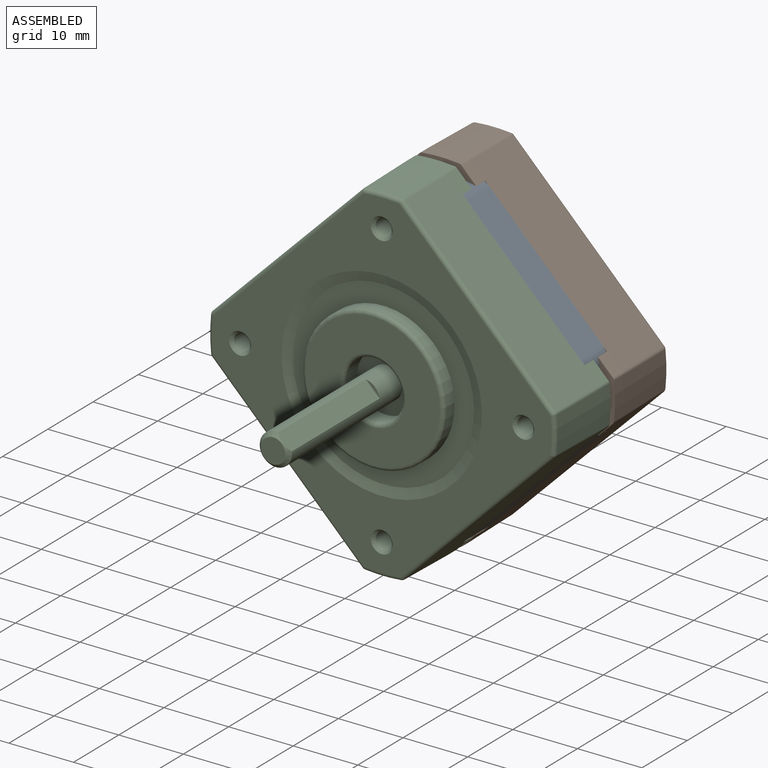
[diagram: assembled view]
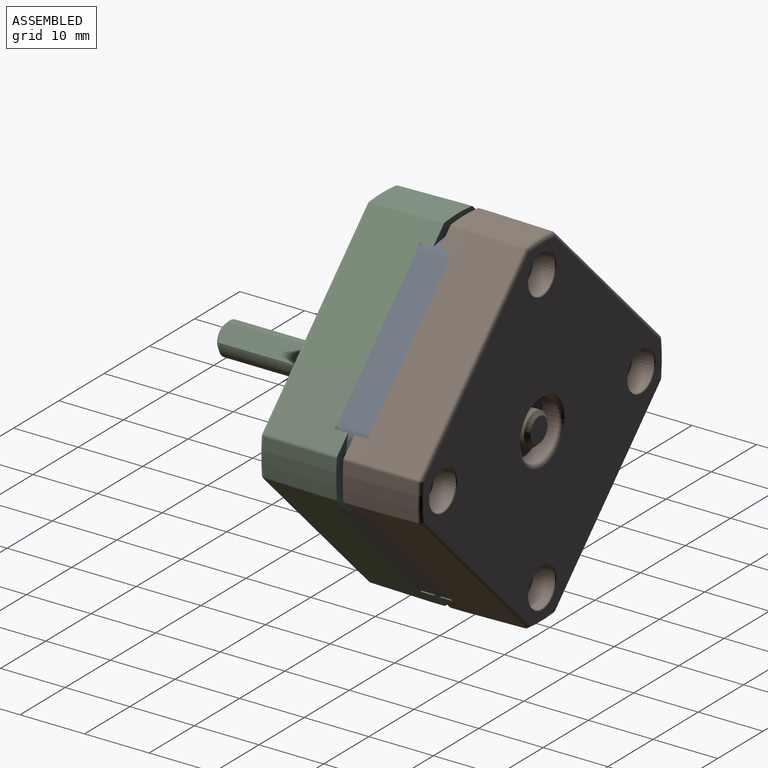
[diagram: assembled view, second angle]
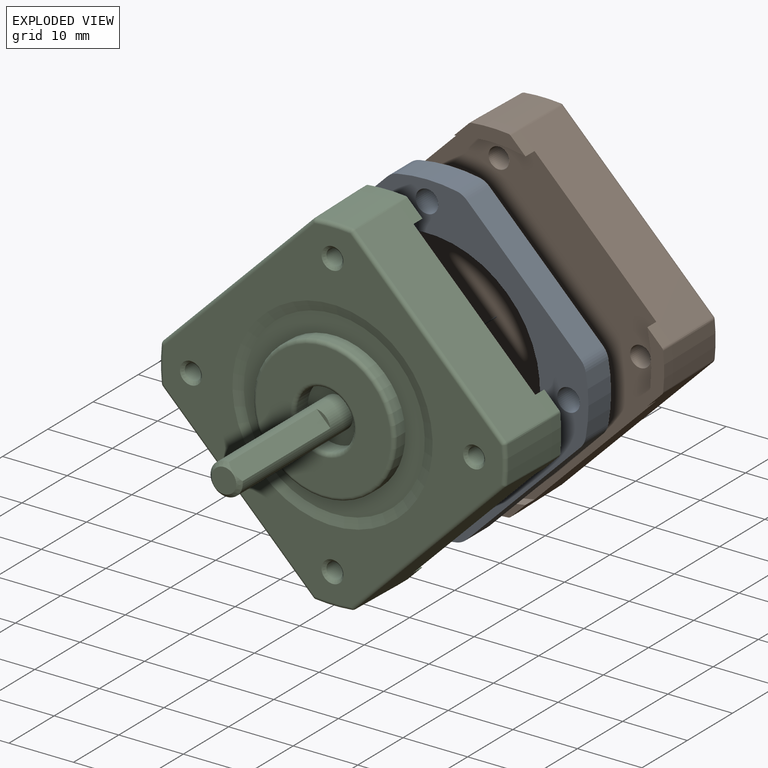
[diagram: exploded view]
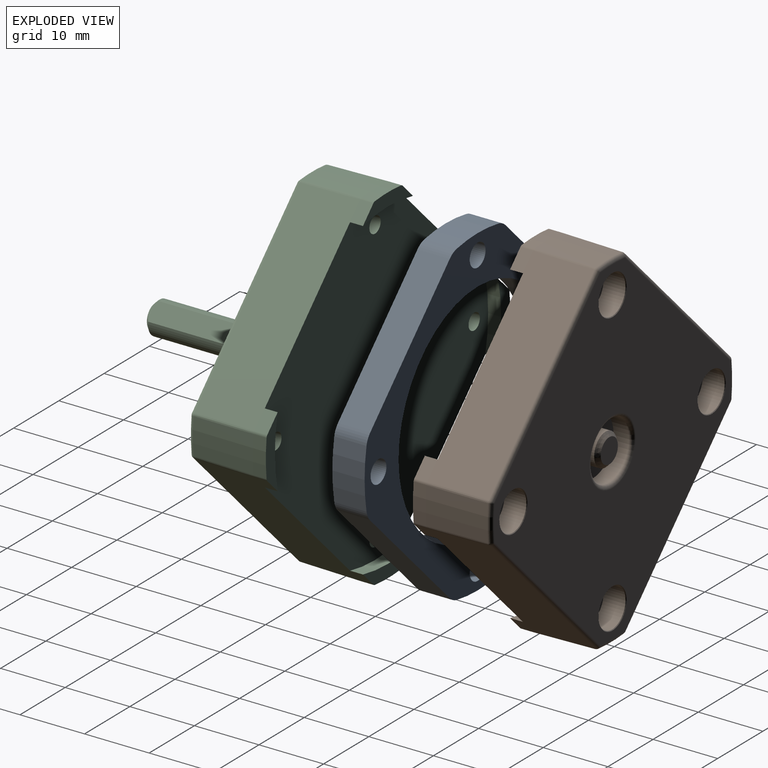
[diagram: exploded view, second angle]
ASSEMBLY  parts=3 mates=2
PART A: 28 faces, bbox 42.3x5x42.3 mm
  f0: cylinder r=17.5mm len=35mm, axis (0,-1,0), area 549.3mm2, adj f1,f2,f23,f25,f27
  f1: plane 42.3x42.3mm, normal (0,1,0), area 653.7mm2, adj f0,f3,f4,f5,f6,f7,f8,f9
  f2: plane 42.3x42.3mm, normal (0,-1,0), area 684.1mm2, adj f0,f3,f4,f5,f6,f7,f8,f9
  f3: cylinder r=25mm len=6.5mm, axis (0,-1,0), area 46.2mm2, adj f1,f2,f17,f18
  f4: plane 24.87x5mm, normal (0,0,-1), area 124.3mm2, adj f1,f2,f18,f19,f25
  f5: cylinder r=25mm len=6.5mm, axis (0,-1,0), area 46.2mm2, adj f1,f2,f19,f20
  f6: plane 24.87x5mm, normal (-1,0,0), area 124.3mm2, adj f1,f2,f20,f21
  f7: cylinder r=25mm len=6.5mm, axis (0,-1,0), area 46.2mm2, adj f1,f2,f21,f22
  f8: plane 24.87x5mm, normal (0,0,1), area 124.3mm2, adj f1,f2,f15,f22
  f9: cylinder r=25mm len=6.5mm, axis (0,-1,0), area 46.2mm2, adj f1,f2,f15,f16
  f10: plane 24.87x5mm, normal (1,0,0), area 124.3mm2, adj f1,f2,f16,f17
  f11: cylinder r=1.75mm len=5mm, axis (0,-1,0), area 55mm2, adj f1,f2
  f12: cylinder r=1.75mm len=5mm, axis (0,-1,0), area 55mm2, adj f1,f2
  f13: cylinder r=1.75mm len=5mm, axis (0,-1,0), area 55mm2, adj f1,f2
  f14: cylinder r=1.75mm len=5mm, axis (0,-1,0), area 55mm2, adj f1,f2
  f15: cylinder r=3mm len=5mm, axis (0,-1,0), area 9mm2, adj f1,f2,f8,f9
  f16: cylinder r=3mm len=5mm, axis (0,-1,0), area 9mm2, adj f1,f2,f9,f10
  f17: cylinder r=3mm len=5mm, axis (0,-1,0), area 9mm2, adj f1,f2,f3,f10
  f18: cylinder r=3mm len=5mm, axis (0,-1,0), area 9mm2, adj f1,f2,f3,f4
  f19: cylinder r=3mm len=5mm, axis (0,-1,0), area 9mm2, adj f1,f2,f4,f5
  f20: cylinder r=3mm len=5mm, axis (0,-1,0), area 9mm2, adj f1,f2,f5,f6
  f21: cylinder r=3mm len=5mm, axis (0,-1,0), area 9mm2, adj f1,f2,f6,f7
  f22: cylinder r=3mm len=5mm, axis (0,-1,0), area 9mm2, adj f1,f2,f7,f8
  f23: plane 0.52x0.07mm, normal (0,0.02,-1), area 0mm2, adj f0,f1,f24,f25
  f24: plane 4x0.07mm, normal (1,0,0), area 0.1mm2, adj f1,f23,f25
  f25: plane 8.01x4.01mm, normal (0,1,0.02), area 30.4mm2, adj f0,f4,f23,f24,f26,f27
  f26: plane 4x0.07mm, normal (-1,0,0), area 0.1mm2, adj f1,f25,f27
  f27: plane 0.52x0.07mm, normal (0,0.02,-1), area 0mm2, adj f0,f1,f25,f26
PART B: 90 faces, bbox 43.1x57x43.1 mm
  f0: plane 3.24x2mm, normal (0,0,-1), area 6.5mm2, adj f15,f23,f25,f57
  f1: plane 3.24x2mm, normal (-1,0,0), area 6.5mm2, adj f6,f21,f26,f66
  f2: plane 3.24x2mm, normal (0,0,1), area 6.5mm2, adj f5,f19,f27,f88
  f3: plane 3.24x2mm, normal (1,0,0), area 6.5mm2, adj f4,f17,f29,f69
  f4: plane 7.82x7.82mm, normal (0,-1,0), area 17.2mm2, adj f3,f7,f8,f29,f61,f69
  f5: plane 7.82x7.82mm, normal (0,-1,0), area 17.2mm2, adj f2,f13,f14,f27,f77,f88
  f6: plane 7.82x7.82mm, normal (0,-1,0), area 17.2mm2, adj f1,f11,f12,f26,f66,f74
  f7: cylinder r=27mm len=4.07mm, axis (0,1,0), area 11.5mm2, adj f4,f16,f61,f69
  f8: plane 3.24x2mm, normal (0,0,-1), area 6.5mm2, adj f4,f23,f29,f61
  f9: cylinder r=27mm len=4.07mm, axis (0,1,0), area 11.5mm2, adj f15,f22,f57,f59
  f10: plane 3.24x2mm, normal (-1,0,0), area 6.5mm2, adj f15,f21,f25,f59
  f11: cylinder r=27mm len=4.07mm, axis (0,1,0), area 11.5mm2, adj f6,f20,f66,f74
  f12: plane 3.24x2mm, normal (0,0,1), area 6.5mm2, adj f6,f19,f26,f74
  f13: cylinder r=27mm len=4.07mm, axis (0,1,0), area 11.5mm2, adj f5,f18,f77,f88
  f14: plane 3.24x2mm, normal (1,0,0), area 6.5mm2, adj f5,f17,f27,f77
  f15: plane 7.82x7.82mm, normal (0,-1,0), area 17.2mm2, adj f0,f9,f10,f25,f57,f59
  f16: cone r=27mm half-angle=1deg, axis (0,-1,0), area 53.5mm2, adj f7,f65,f72,f73
  f17: plane 33.15x9.41mm, normal (1,0.02,0), area 311.4mm2, adj f3,f14,f28,f73,f80,f81
  f18: cone r=27mm half-angle=1deg, axis (0,-1,0), area 53.5mm2, adj f13,f81,f85,f87
  f19: plane 33.15x9.41mm, normal (0,0.02,1), area 311.4mm2, adj f2,f12,f28,f78,f84,f87
  f20: cone r=27mm half-angle=1deg, axis (0,-1,0), area 53.5mm2, adj f11,f70,f78,f79
  f21: plane 33.15x9.41mm, normal (-1,0.02,0), area 311.4mm2, adj f1,f10,f28,f62,f70,f71
  f22: cone r=27mm half-angle=1deg, axis (0,-1,0), area 53.5mm2, adj f9,f58,f62,f63
  f23: plane 33.15x9.41mm, normal (0,0.02,-1), area 255.3mm2, adj f0,f8,f28,f50,f51,f52,f54,f55
  f24: plane 40.77x40.77mm, normal (0,1,0), area 1432mm2, adj f33,f37,f41,f45,f56,f63,f64,f71
  f25: cylinder r=25mm len=7.82mm, axis (0,-1,0), area 22.3mm2, adj f0,f10,f15,f28
  f26: cylinder r=25mm len=7.82mm, axis (0,-1,0), area 22.3mm2, adj f1,f6,f12,f28
  f27: cylinder r=25mm len=7.82mm, axis (0,-1,0), area 22.3mm2, adj f2,f5,f14,f28
  f28: plane 42.3x42.3mm, normal (0,-1,0), area 1616.3mm2, adj f17,f19,f21,f23,f25,f26,f27,f29
  f29: cylinder r=25mm len=7.82mm, axis (0,-1,0), area 22.3mm2, adj f3,f4,f8,f28
  f30: cylinder r=1.6mm len=6.5mm, axis (0,1,0), area 65.3mm2, adj f28,f31
  f31: plane 6x6mm, normal (0,1,0), area 20.2mm2, adj f30,f32
  f32: cylinder r=3mm len=6mm, axis (0,1,0), area 64.1mm2, adj f31,f33
  f33: cone r=3.1mm half-angle=45deg, axis (0,1,0), area 2.7mm2, adj f24,f32
  f34: cylinder r=1.6mm len=6.5mm, axis (0,1,0), area 65.3mm2, adj f28,f35
  f35: plane 6x6mm, normal (0,1,0), area 20.2mm2, adj f34,f36
  f36: cylinder r=3mm len=6mm, axis (0,1,0), area 64.1mm2, adj f35,f37
  f37: cone r=3.1mm half-angle=45deg, axis (0,1,0), area 2.7mm2, adj f24,f36
  f38: cylinder r=1.6mm len=6.5mm, axis (0,1,0), area 65.3mm2, adj f28,f39
  f39: plane 6x6mm, normal (0,1,0), area 20.2mm2, adj f38,f40
  f40: cylinder r=3mm len=6mm, axis (0,1,0), area 64.1mm2, adj f39,f41
  f41: cone r=3.1mm half-angle=45deg, axis (0,1,0), area 2.7mm2, adj f24,f40
  f42: cylinder r=1.6mm len=6.5mm, axis (0,1,0), area 65.3mm2, adj f28,f43
  f43: plane 6x6mm, normal (0,1,0), area 20.2mm2, adj f42,f44
  f44: cylinder r=3mm len=6mm, axis (0,1,0), area 64.1mm2, adj f43,f45
  f45: cone r=3.1mm half-angle=45deg, axis (0,1,0), area 2.7mm2, adj f24,f44
  f46: cylinder r=4.5mm len=9mm, axis (0,1,0), area 67.9mm2, adj f47,f56
  f47: plane 9x9mm, normal (0,1,0), area 44mm2, adj f46,f48
  f48: cylinder r=2.5mm len=5mm, axis (0,-1,0), area 29.8mm2, adj f47,f89
  f49: plane 3.8x3.8mm, normal (0,1,0), area 11.3mm2, adj f89
  f50: plane 6.4x4.11mm, normal (1,0,0), area 25.5mm2, adj f23,f52,f53,f54
  f51: plane 6.4x4.11mm, normal (-1,0,0), area 25.5mm2, adj f23,f52,f53,f55
  f52: plane 8x4mm, normal (0,-1,-0.02), area 32mm2, adj f23,f50,f51,f53
  f53: plane 9.2x6.93mm, normal (0,0.02,-1), area 55.6mm2, adj f28,f50,f51,f52,f54,f55
  f54: cylinder r=0.6mm len=4.01mm, axis (0,0,1), area 3.8mm2, adj f23,f28,f50,f53
  f55: cylinder r=0.6mm len=4.01mm, axis (0,0,-1), area 3.8mm2, adj f23,f28,f51,f53
  f56: torus R=5.1mm, axis (0,1,0), area 27.9mm2, adj f24,f46
  f57: cylinder r=0.6mm len=2mm, axis (0,1,0), area 0.8mm2, adj f0,f9,f15,f58
  f58: bspline ~56.99x1.13mm, area 3.8mm2, adj f22,f23,f57,f60
  f59: cylinder r=0.6mm len=2mm, axis (0,1,0), area 0.8mm2, adj f9,f10,f15,f62
  f60: sphere r=0.6mm, area 0.3mm2, adj f58,f63,f64
  f61: cylinder r=0.6mm len=2mm, axis (0,1,0), area 0.8mm2, adj f4,f7,f8,f65
  f62: bspline ~56.99x1.13mm, area 3.8mm2, adj f21,f22,f59,f67
  f63: torus R=26.24mm, axis (0,1,0), area 5.2mm2, adj f22,f24,f60,f67
  f64: cylinder r=0.6mm len=33.03mm, axis (1,0,0), area 30.8mm2, adj f23,f24,f60,f68
  f65: bspline ~56.99x1.13mm, area 3.8mm2, adj f16,f23,f61,f68
  f66: cylinder r=0.6mm len=2mm, axis (0,1,0), area 0.8mm2, adj f1,f6,f11,f70
  f67: sphere r=0.6mm, area 0.2mm2, adj f62,f63,f71
  f68: sphere r=0.6mm, area 0.3mm2, adj f64,f65,f72
  f69: cylinder r=0.6mm len=2mm, axis (0,1,0), area 0.8mm2, adj f3,f4,f7,f73
  f70: bspline ~56.99x1.13mm, area 3.8mm2, adj f20,f21,f66,f75
  f71: cylinder r=0.6mm len=33.03mm, axis (0,0,-1), area 30.8mm2, adj f21,f24,f67,f75
  f72: torus R=26.24mm, axis (0,1,0), area 5.2mm2, adj f16,f24,f68,f76
  f73: bspline ~56.99x1.13mm, area 3.8mm2, adj f16,f17,f69,f76
  f74: cylinder r=0.6mm len=2mm, axis (0,1,0), area 0.8mm2, adj f6,f11,f12,f78
  f75: sphere r=0.6mm, area 0.2mm2, adj f70,f71,f79
  f76: sphere r=0.6mm, area 0.2mm2, adj f72,f73,f80
  f77: cylinder r=0.6mm len=2mm, axis (0,1,0), area 0.8mm2, adj f5,f13,f14,f81
  f78: bspline ~56.99x1.13mm, area 3.8mm2, adj f19,f20,f74,f82
  f79: torus R=26.24mm, axis (0,1,0), area 5.2mm2, adj f20,f24,f75,f82
  f80: cylinder r=0.6mm len=33.03mm, axis (0,0,1), area 30.8mm2, adj f17,f24,f76,f83
  f81: bspline ~56.99x1.13mm, area 3.8mm2, adj f17,f18,f77,f83
  f82: sphere r=0.6mm, area 0.3mm2, adj f78,f79,f84
  f83: sphere r=0.6mm, area 0.2mm2, adj f80,f81,f85
  f84: cylinder r=0.6mm len=33.03mm, axis (-1,0,0), area 30.8mm2, adj f19,f24,f82,f86
  f85: torus R=26.24mm, axis (0,1,0), area 5.2mm2, adj f18,f24,f83,f86
  f86: sphere r=0.6mm, area 0.3mm2, adj f84,f85,f87
  f87: bspline ~56.99x1.13mm, area 3.8mm2, adj f18,f19,f86,f88
  f88: cylinder r=0.6mm len=2mm, axis (0,1,0), area 0.8mm2, adj f2,f5,f13,f87
  f89: cone r=1.9mm half-angle=45deg, axis (0,-1,0), area 11.7mm2, adj f48,f49
PART C: 83 faces, bbox 43.1x57.5x43.1 mm
  f0: plane 3.24x2mm, normal (0,0,-1), area 6.5mm2, adj f15,f23,f25,f54
  f1: plane 3.24x2mm, normal (-1,0,0), area 6.5mm2, adj f6,f21,f26,f70
  f2: plane 3.24x2mm, normal (0,0,1), area 6.5mm2, adj f5,f19,f27,f67
  f3: plane 3.24x2mm, normal (1,0,0), area 6.5mm2, adj f4,f17,f29,f52
  f4: plane 7.82x7.82mm, normal (0,1,0), area 17.2mm2, adj f3,f7,f8,f29,f50,f52
  f5: plane 7.82x7.82mm, normal (0,1,0), area 17.2mm2, adj f2,f13,f14,f27,f59,f67
  f6: plane 7.82x7.82mm, normal (0,1,0), area 17.2mm2, adj f1,f11,f12,f26,f70,f81
  f7: cylinder r=27mm len=4.07mm, axis (0,-1,0), area 11.5mm2, adj f4,f16,f50,f52
  f8: plane 3.24x2mm, normal (0,0,-1), area 6.5mm2, adj f4,f23,f29,f50
  f9: cylinder r=27mm len=4.07mm, axis (0,-1,0), area 11.5mm2, adj f15,f22,f54,f62
  f10: plane 3.24x2mm, normal (-1,0,0), area 6.5mm2, adj f15,f21,f25,f62
  f11: cylinder r=27mm len=4.07mm, axis (0,-1,0), area 11.5mm2, adj f6,f20,f70,f81
  f12: plane 3.24x2mm, normal (0,0,1), area 6.5mm2, adj f6,f19,f26,f81
  f13: cylinder r=27mm len=4.07mm, axis (0,-1,0), area 11.5mm2, adj f5,f18,f59,f67
  f14: plane 3.24x2mm, normal (1,0,0), area 6.5mm2, adj f5,f17,f27,f59
  f15: plane 7.82x7.82mm, normal (0,1,0), area 17.2mm2, adj f0,f9,f10,f25,f54,f62
  f16: cone r=27mm half-angle=1deg, axis (0,1,0), area 53.5mm2, adj f7,f51,f55,f56
  f17: plane 33.15x9.41mm, normal (1,-0.02,0), area 311.4mm2, adj f3,f14,f28,f55,f63,f64
  f18: cone r=27mm half-angle=1deg, axis (0,1,0), area 53.5mm2, adj f13,f63,f71,f72
  f19: plane 33.15x9.41mm, normal (0,-0.02,1), area 311.4mm2, adj f2,f12,f28,f71,f77,f80
  f20: cone r=27mm half-angle=1deg, axis (0,1,0), area 53.5mm2, adj f11,f74,f78,f80
  f21: plane 33.15x9.41mm, normal (-1,-0.02,0), area 311.4mm2, adj f1,f10,f28,f66,f73,f74
  f22: cone r=27mm half-angle=1deg, axis (0,1,0), area 53.5mm2, adj f9,f58,f65,f66
  f23: plane 33.15x9.41mm, normal (0,-0.02,-1), area 311.4mm2, adj f0,f8,f28,f51,f57,f58
  f24: plane 40.77x40.77mm, normal (0,-1,0), area 843.4mm2, adj f30,f35,f37,f39,f41,f56,f57,f64
  f25: cylinder r=25mm len=7.82mm, axis (0,1,0), area 22.3mm2, adj f0,f10,f15,f28
  f26: cylinder r=25mm len=7.82mm, axis (0,1,0), area 22.3mm2, adj f1,f6,f12,f28
  f27: cylinder r=25mm len=7.82mm, axis (0,1,0), area 22.3mm2, adj f2,f5,f14,f28
  f28: plane 42.3x42.3mm, normal (0,1,0), area 1665.6mm2, adj f17,f19,f21,f23,f25,f26,f27,f29
  f29: cylinder r=25mm len=7.82mm, axis (0,1,0), area 22.3mm2, adj f3,f4,f8,f28
  f30: cone r=15.5mm half-angle=75deg, axis (0,-1,0), area 143.3mm2, adj f24,f31
  f31: plane 28.01x28.01mm, normal (0,-1,0), area 236.3mm2, adj f30,f32
  f32: cylinder r=11mm len=22mm, axis (0,-1,0), area 124.4mm2, adj f31,f49
  f33: plane 20.8x20.8mm, normal (0,-1,0), area 258.1mm2, adj f48,f49
  f34: cylinder r=1.25mm len=9.55mm, axis (0,-1,0), area 75mm2, adj f28,f35
  f35: cone r=1.7mm half-angle=45deg, axis (0,-1,0), area 5.9mm2, adj f24,f34
  f36: cylinder r=1.25mm len=9.55mm, axis (0,-1,0), area 75mm2, adj f28,f37
  f37: cone r=1.7mm half-angle=45deg, axis (0,-1,0), area 5.9mm2, adj f24,f36
  f38: cylinder r=1.25mm len=9.55mm, axis (0,-1,0), area 75mm2, adj f28,f39
  f39: cone r=1.7mm half-angle=45deg, axis (0,-1,0), area 5.9mm2, adj f24,f38
  f40: cylinder r=1.25mm len=9.55mm, axis (0,-1,0), area 75mm2, adj f28,f41
  f41: cone r=1.7mm half-angle=45deg, axis (0,-1,0), area 5.9mm2, adj f24,f40
  f42: cylinder r=4.5mm len=9mm, axis (0,-1,0), area 67.9mm2, adj f43,f48
  f43: plane 9x9mm, normal (0,-1,0), area 44mm2, adj f42,f44
  f44: cylinder r=2.5mm len=24.4mm, axis (0,1,0), area 320.9mm2, adj f43,f46,f47,f82
  f45: plane 3.8x3.8mm, normal (0,-1,0), area 11.3mm2, adj f82
  f46: plane 19.9x3mm, normal (0,0,1), area 59.2mm2, adj f44,f47,f82
  f47: plane 3x0.5mm, normal (0,-1,0), area 1mm2, adj f44,f46
  f48: torus R=5.1mm, axis (0,-1,0), area 27.9mm2, adj f33,f42
  f49: torus R=10.4mm, axis (0,-1,0), area 63.8mm2, adj f32,f33
  f50: cylinder r=0.6mm len=2mm, axis (0,-1,0), area 0.8mm2, adj f4,f7,f8,f51
  f51: bspline ~56.99x1.13mm, area 3.8mm2, adj f16,f23,f50,f53
  f52: cylinder r=0.6mm len=2mm, axis (0,-1,0), area 0.8mm2, adj f3,f4,f7,f55
  f53: sphere r=0.6mm, area 0.3mm2, adj f51,f56,f57
  f54: cylinder r=0.6mm len=2mm, axis (0,-1,0), area 0.8mm2, adj f0,f9,f15,f58
  f55: bspline ~56.99x1.13mm, area 3.8mm2, adj f16,f17,f52,f60
  f56: torus R=26.24mm, axis (0,-1,0), area 5.2mm2, adj f16,f24,f53,f60
  f57: cylinder r=0.6mm len=33.03mm, axis (1,0,0), area 30.8mm2, adj f23,f24,f53,f61
  f58: bspline ~56.99x1.13mm, area 3.8mm2, adj f22,f23,f54,f61
  f59: cylinder r=0.6mm len=2mm, axis (0,-1,0), area 0.8mm2, adj f5,f13,f14,f63
  f60: sphere r=0.6mm, area 0.2mm2, adj f55,f56,f64
  f61: sphere r=0.6mm, area 0.3mm2, adj f57,f58,f65
  f62: cylinder r=0.6mm len=2mm, axis (0,-1,0), area 0.8mm2, adj f9,f10,f15,f66
  f63: bspline ~56.99x1.13mm, area 3.8mm2, adj f17,f18,f59,f68
  f64: cylinder r=0.6mm len=33.03mm, axis (0,0,1), area 30.8mm2, adj f17,f24,f60,f68
  f65: torus R=26.24mm, axis (0,-1,0), area 5.2mm2, adj f22,f24,f61,f69
  f66: bspline ~56.99x1.13mm, area 3.8mm2, adj f21,f22,f62,f69
  f67: cylinder r=0.6mm len=2mm, axis (0,-1,0), area 0.8mm2, adj f2,f5,f13,f71
  f68: sphere r=0.6mm, area 0.2mm2, adj f63,f64,f72
  f69: sphere r=0.6mm, area 0.2mm2, adj f65,f66,f73
  f70: cylinder r=0.6mm len=2mm, axis (0,-1,0), area 0.8mm2, adj f1,f6,f11,f74
  f71: bspline ~56.99x1.13mm, area 3.8mm2, adj f18,f19,f67,f75
  f72: torus R=26.24mm, axis (0,-1,0), area 5.2mm2, adj f18,f24,f68,f75
  f73: cylinder r=0.6mm len=33.03mm, axis (0,0,-1), area 30.8mm2, adj f21,f24,f69,f76
  f74: bspline ~56.99x1.13mm, area 3.8mm2, adj f20,f21,f70,f76
  f75: sphere r=0.6mm, area 0.3mm2, adj f71,f72,f77
  f76: sphere r=0.6mm, area 0.2mm2, adj f73,f74,f78
  f77: cylinder r=0.6mm len=33.03mm, axis (-1,0,0), area 30.8mm2, adj f19,f24,f75,f79
  f78: torus R=26.24mm, axis (0,-1,0), area 5.2mm2, adj f20,f24,f76,f79
  f79: sphere r=0.6mm, area 0.3mm2, adj f77,f78,f80
  f80: bspline ~56.99x1.13mm, area 3.8mm2, adj f19,f20,f79,f81
  f81: cylinder r=0.6mm len=2mm, axis (0,-1,0), area 0.8mm2, adj f6,f11,f12,f80
  f82: cone r=1.9mm half-angle=45deg, axis (0,1,0), area 10.3mm2, adj f44,f45,f46
PLACE A rot(axis=(0,1,0),45deg) t=(82.02,-14.74,72.29)mm
PLACE B rot(axis=(0,1,0),45deg) t=(82.02,-14.74,72.29)mm
PLACE C rot(axis=(0,1,0),45deg) t=(82.02,-14.74,72.29)mm
MATE fastened A.f13 <-> C.f36  axis (0,-1,0) through (82.02,-14.74,94.21)mm
MATE fastened A.f13 <-> B.f30  axis (0,1,0) through (82.02,-9.74,94.21)mm
